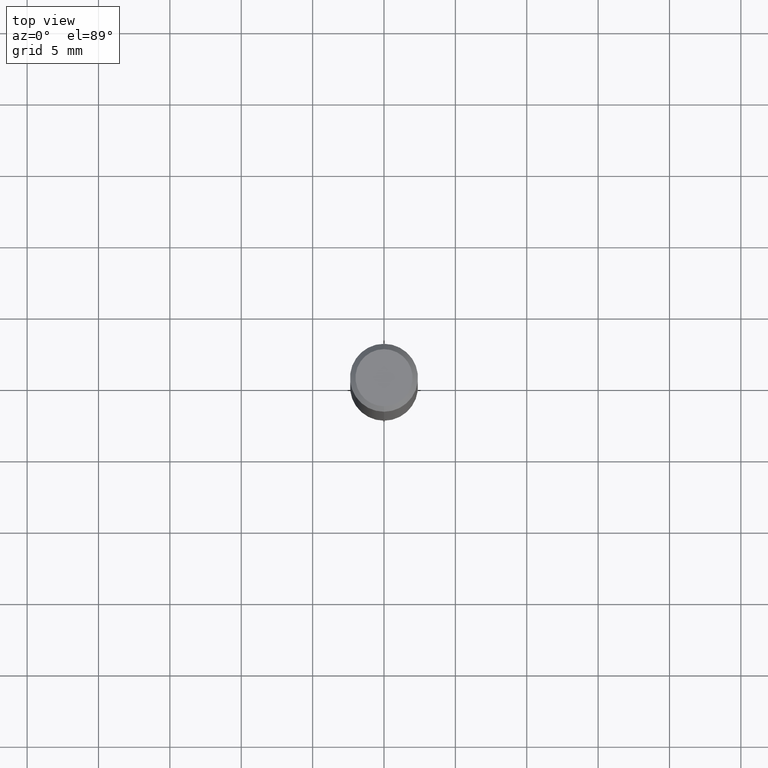
[diagram: clean part render]
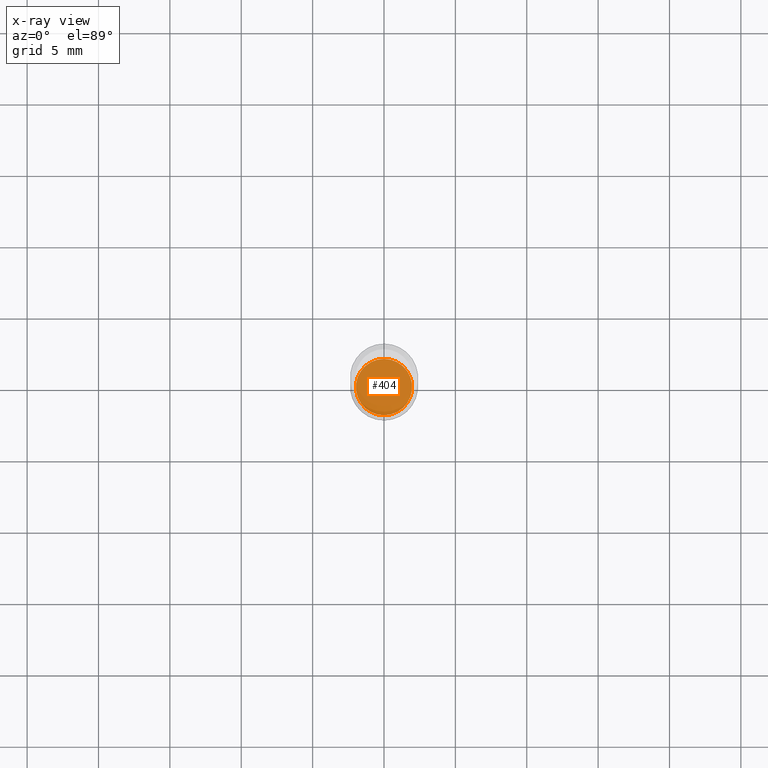
[diagram: x-ray — body ghosted, one internal face saturated and labeled with its STEP entity id]
A machine part, top view, then the same camera in x-ray: the body is ghosted and one INTERNAL B-rep face — a face not visible from any outside direction — is saturated and labeled: STEP entity #404.
In plain terms, the highlighted planar face has unit normal (-0, 0, 1).
Its self-contained STEP definition (entity closure, byte-faithful):
#24 = CIRCLE ( 'NONE', #308, 0.07760000000000000231 ) ;
#30 = VERTEX_POINT ( 'NONE', #185 ) ;
#41 = AXIS2_PLACEMENT_3D ( 'NONE', #325, #486, #288 ) ;
#96 = DIRECTION ( 'NONE',  ( -2.445022562880343100E-29, 3.492120384654201603E-15, 1.000000000000000000 ) ) ;
#111 = ORIENTED_EDGE ( 'NONE', *, *, #368, .F. ) ;
#141 = FACE_OUTER_BOUND ( 'NONE', #465, .T. ) ;
#156 = AXIS2_PLACEMENT_3D ( 'NONE', #414, #294, #463 ) ;
#185 = CARTESIAN_POINT ( 'NONE',  ( -5.418779037884175500E-16, -0.07760000000000523424, -1.499999999999999778 ) ) ;
#252 = DIRECTION ( 'NONE',  ( -6.982962677686265922E-15, -1.000000000000000000, 3.520422672247761757E-15 ) ) ;
#288 = DIRECTION ( 'NONE',  ( -6.982962677686265922E-15, -1.000000000000000000, 3.520422672247761757E-15 ) ) ;
#294 = DIRECTION ( 'NONE',  ( -2.445022562880342820E-29, 3.492120384654201603E-15, 1.000000000000000000 ) ) ;
#308 = AXIS2_PLACEMENT_3D ( 'NONE', #449, #96, #252 ) ;
#325 = CARTESIAN_POINT ( 'NONE',  ( 3.667533844320514651E-29, -5.238180576981301616E-15, -1.500000000000000222 ) ) ;
#334 = CIRCLE ( 'NONE', #41, 0.07760000000000000231 ) ;
#368 = EDGE_CURVE ( 'NONE', #30, #375, #334, .T. ) ;
#375 = VERTEX_POINT ( 'NONE', #447 ) ;
#380 = PLANE ( 'NONE',  #156 ) ;
#389 = EDGE_CURVE ( 'NONE', #375, #30, #24, .T. ) ;
#404 = ADVANCED_FACE ( 'NONE', ( #141 ), #380, .F. ) ;
#414 = CARTESIAN_POINT ( 'NONE',  ( 3.667533844320514090E-29, -5.238180576981300827E-15, -1.499999999999999778 ) ) ;
#447 = CARTESIAN_POINT ( 'NONE',  ( 5.531575197892741031E-16, 0.07759999999999475651, -1.500000000000000444 ) ) ;
#449 = CARTESIAN_POINT ( 'NONE',  ( 3.667533844320514651E-29, -5.238180576981301616E-15, -1.500000000000000222 ) ) ;
#463 = DIRECTION ( 'NONE',  ( -6.982962677686265922E-15, -1.000000000000000000, 3.492120384654201603E-15 ) ) ;
#465 = EDGE_LOOP ( 'NONE', ( #111, #497 ) ) ;
#486 = DIRECTION ( 'NONE',  ( -2.445022562880343100E-29, 3.492120384654201603E-15, 1.000000000000000000 ) ) ;
#497 = ORIENTED_EDGE ( 'NONE', *, *, #389, .F. ) ;